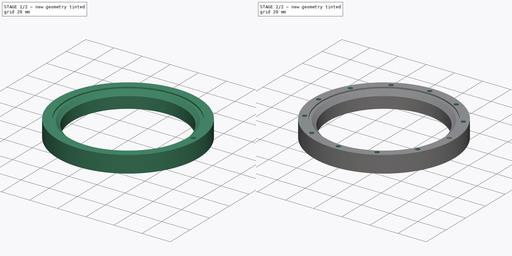
[diagram: build sequence overview — one tinted view per stage of 2, left to right]
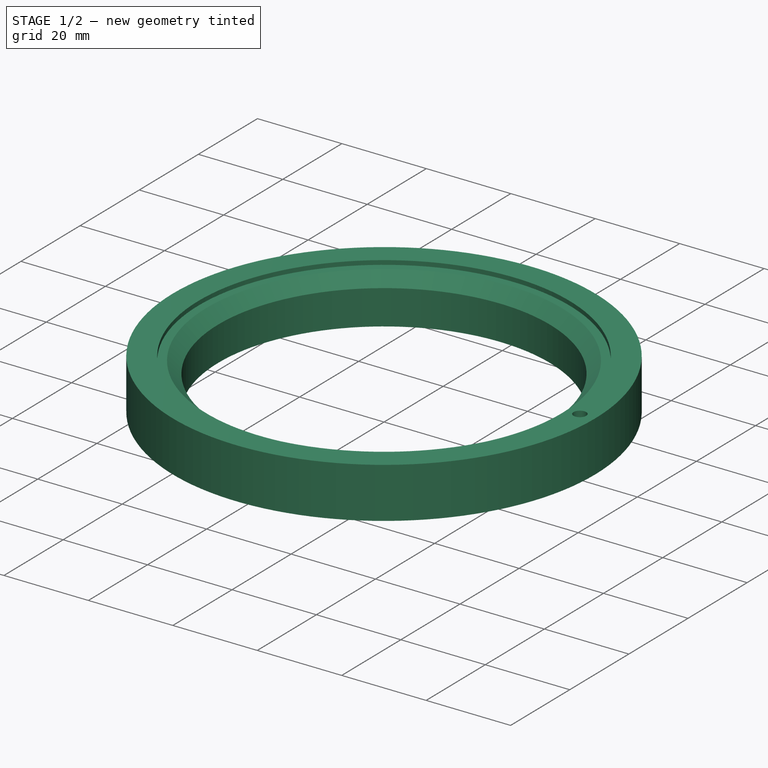
[diagram: stage 1 of 2 — iso view after this stage's code; geometry added in this stage tinted green]
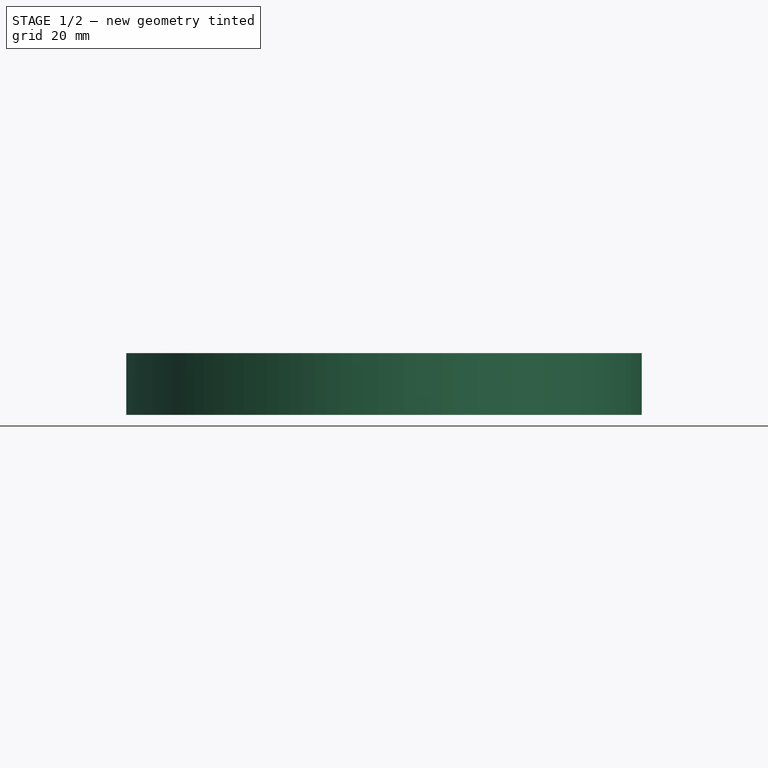
[diagram: stage 1 of 2 — front view after this stage's code; geometry added in this stage tinted green]
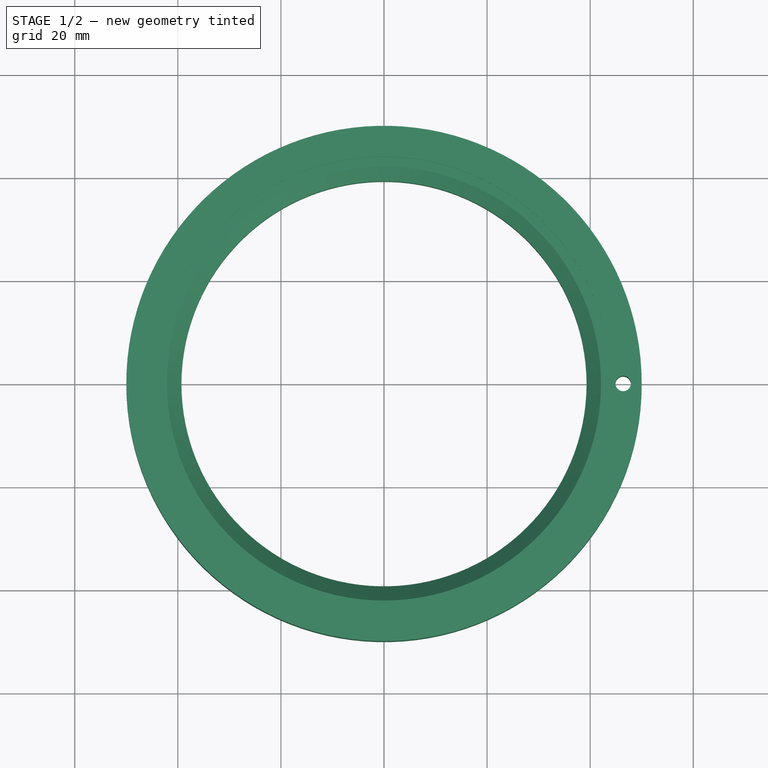
[diagram: stage 1 of 2 — top view after this stage's code; geometry added in this stage tinted green]
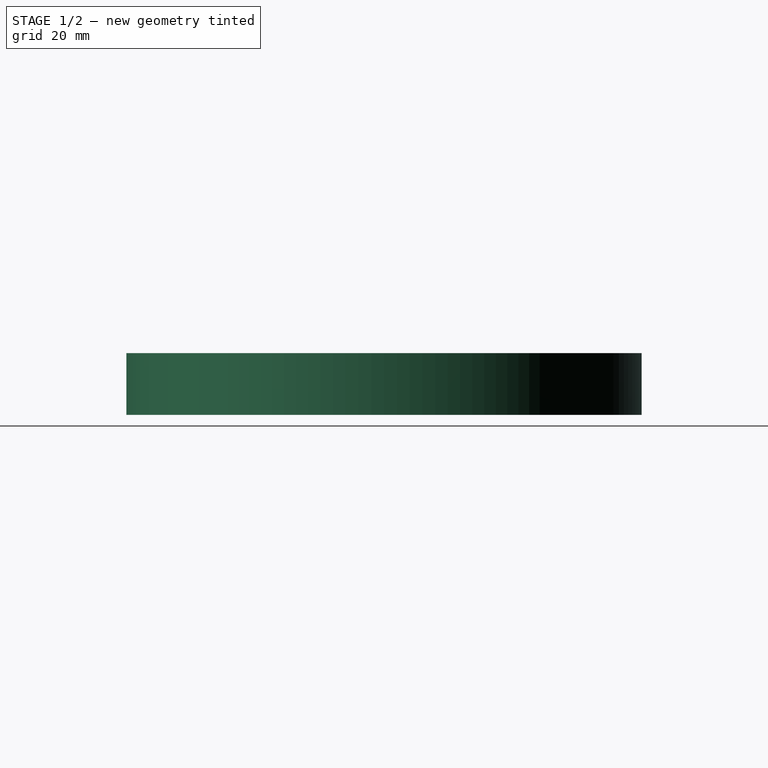
[diagram: stage 1 of 2 — right view after this stage's code; geometry added in this stage tinted green]
FCSTD DOCUMENT  (FreeCAD 0.16R6705 (Git))
Label: TestOuterRace
License: All rights reserved
LicenseURL: http://en.wikipedia.org/wiki/All_rights_reserved
objects: Sketcher::SketchObject×2, PartDesign::Revolution×1, PartDesign::Pocket×1, PartDesign::PolarPattern×1
note: 7 computed .brp shape members not serialized (recipe doc carries the construction recipe); baked Part::Feature solids carry a one-line shape summary decoded from their .brp

FEATURE [Sketcher::SketchObject] Sketch013
  Placement = pos=(0,0,0) rot=(1,0,0;1.5708rad)
  sketch-geometry (9):
    g0: LineSegment StartX=39.3 StartY=0 StartZ=0 EndX=39.3 EndY=8.19878 EndZ=0
    g1: LineSegment StartX=39.3 StartY=8.19878 StartZ=0 EndX=42.1012 EndY=11 EndZ=0
    g2: LineSegment StartX=44 StartY=12 StartZ=0 EndX=50 EndY=12 EndZ=0
    g3: LineSegment StartX=50 StartY=12 StartZ=0 EndX=50 EndY=0 EndZ=0
    g4: LineSegment StartX=42.1012 StartY=11 StartZ=0 EndX=44 EndY=11 EndZ=0
    g5: LineSegment StartX=44 StartY=11 StartZ=0 EndX=44 EndY=12 EndZ=0
    g6: Circle [constr] CenterX=39 CenterY=12 CenterZ=0 NormalX=0 NormalY=0 NormalZ=1 Radius=2.9
    g7: LineSegment [constr] StartX=39 StartY=12 StartZ=0 EndX=44 EndY=12 EndZ=0
    g8: LineSegment StartX=39.3 StartY=0 StartZ=0 EndX=50 EndY=0 EndZ=0
  constraints (29):
    c: Vertical(g0)
    c: Coincident(g0,g1)
    c: Horizontal(g2)
    c: Coincident(g3,g2)
    c: Vertical(g3)
    c: Coincident(g1,g4)
    c: Coincident(g4,g5)
    c: Coincident(g2,g5)
    c: Vertical(g5)
    c: Horizontal(g4)
    c: Radius(g6) = 2.9
    c: Tangent(g1,g6)
    c: Coincident(g7,g6)
    c: Horizontal(g7)
    c: Angle(g1,g7) = 2.35619
    c: DistanceX(g6,g0) = 0.3
    c: DistanceY(g1,g6) = 1
    c: Coincident(g2,g7)
    c: DistanceX(g-1,g4) = 44
    c: DistanceX(g-1,g6) = 39
    c: DistanceX(g2,g2) = 6
    c: DistanceX(g1,g4) = 1.89878
    c: Coincident(g8,g0)
    c: Horizontal(g8)
    c: Coincident(g8,g3)
    c: DistanceY(g3,g2) = 12
    c: DistanceY(g0,g0) = 8.19878
    c: DistanceX(g-1,g3) = 50
    c: PointOnObject(g0,g-1)
FEATURE [PartDesign::Revolution] Revolution
  Angle = 360
  Axis = (0,0,1)
  Base = (0,0,0)
  Placement = pos=(0,0,0) rot=(1,0,0;1.5708rad)
  ReferenceAxis = -> Sketch013 [V_Axis]
  Reversed = true
  Sketch = -> Sketch013
FEATURE [Sketcher::SketchObject] Sketch
  Placement = pos=(0,0,0) rot=(1,0,0;3.14159rad)
  Support = -> Revolution [Face7]
  sketch-geometry (1):
    g0: Circle CenterX=46.4 CenterY=0 CenterZ=0 NormalX=0 NormalY=0 NormalZ=1 Radius=1.5
  constraints (3):
    c: PointOnObject(g0,g-1)
    c: Radius(g0) = 1.5
    c: DistanceX(g-1,g0) = 46.4
FEATURE [PartDesign::Pocket] Pocket
  Length = 5
  Placement = pos=(0,0,0) rot=(1,0,0;1.5708rad)
  Sketch = -> Sketch
  Type = 1
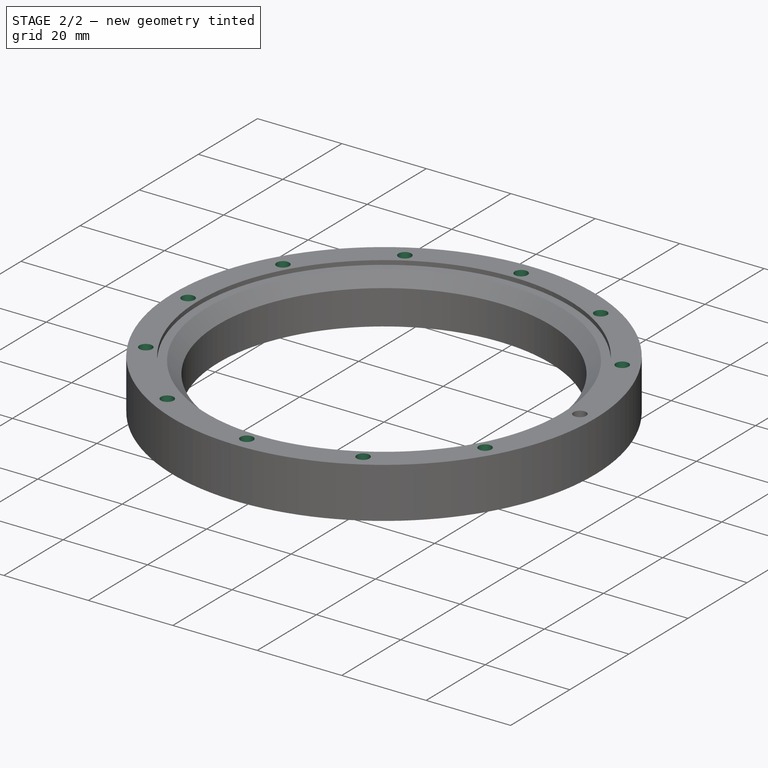
[diagram: stage 2 of 2 — iso view after this stage's code; geometry added in this stage tinted green]
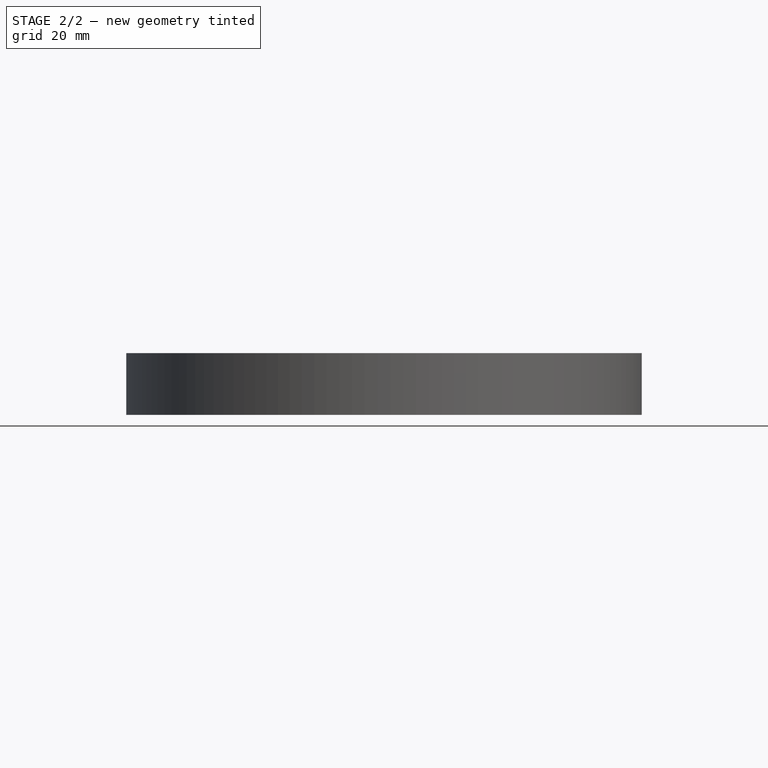
[diagram: stage 2 of 2 — front view after this stage's code; geometry added in this stage tinted green]
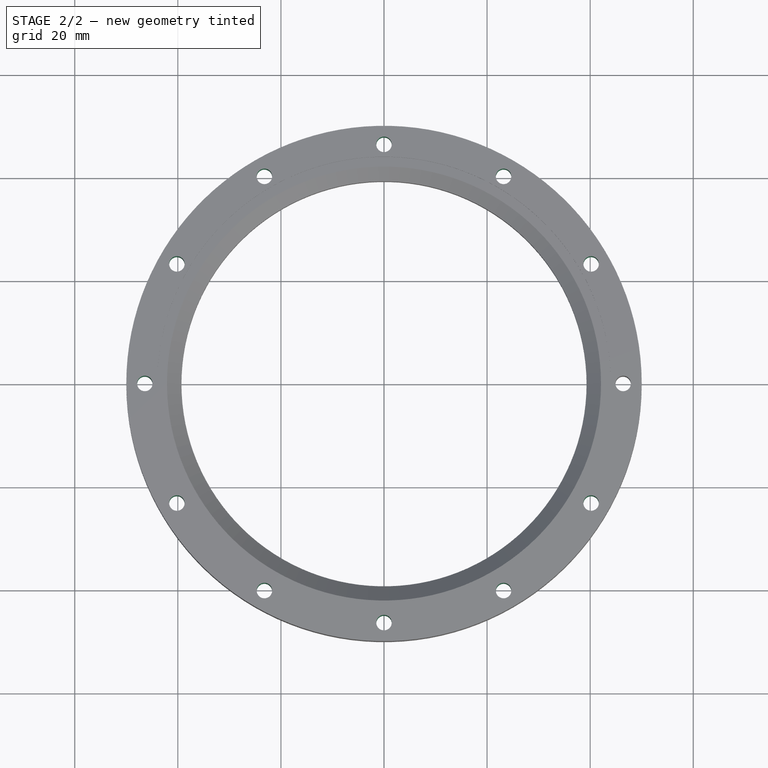
[diagram: stage 2 of 2 — top view after this stage's code; geometry added in this stage tinted green]
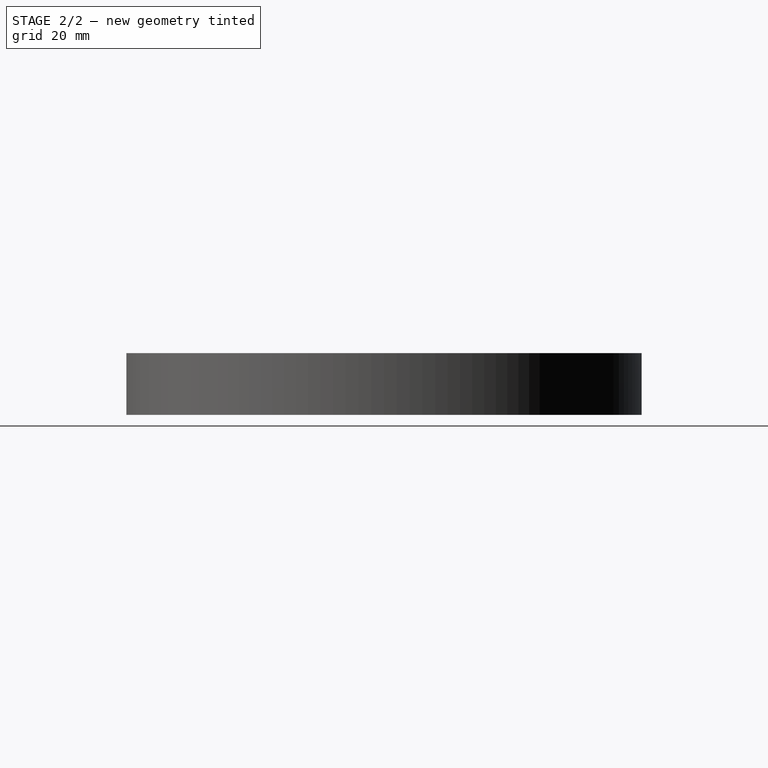
[diagram: stage 2 of 2 — right view after this stage's code; geometry added in this stage tinted green]
FEATURE [PartDesign::PolarPattern] PolarPattern
  Angle = 360
  Axis = -> Sketch [N_Axis]
  Occurrences = 12
  Originals = -> [Pocket]
  Placement = pos=(0,0,0) rot=(1,0,0;1.5708rad)
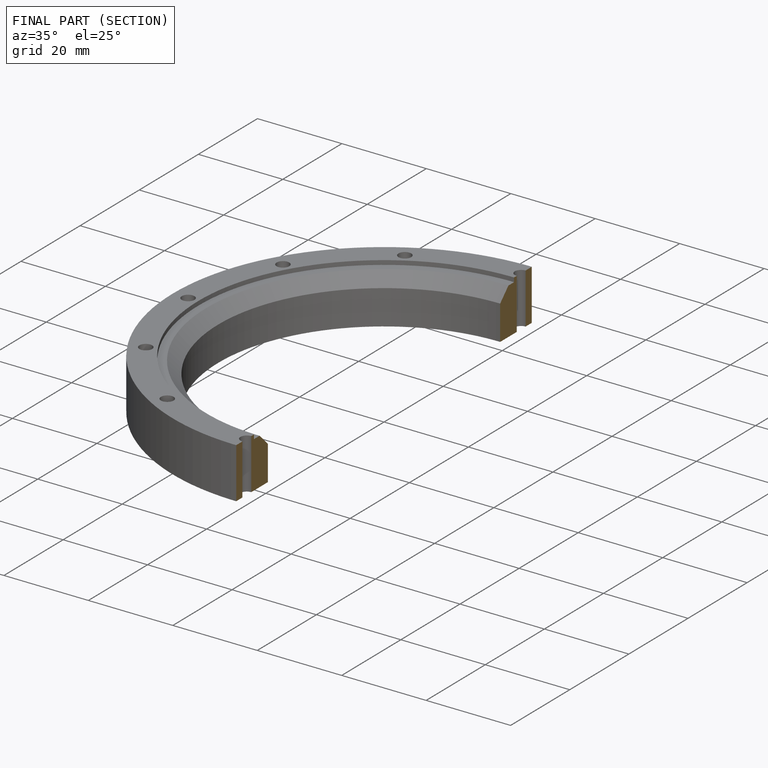
[diagram: finished part — half-section view (interior)]
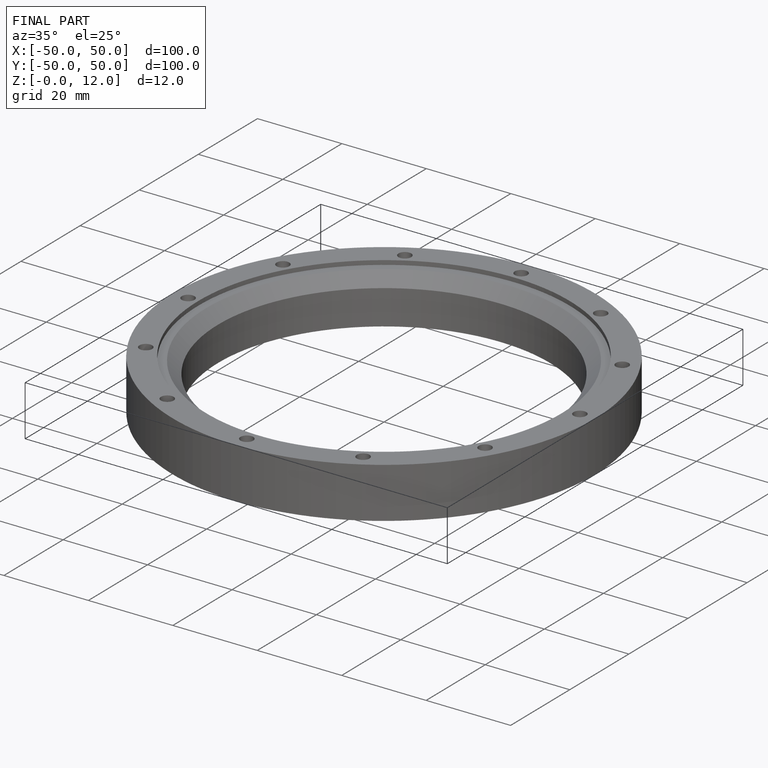
[diagram: finished part — iso view with bounding-box wireframe]
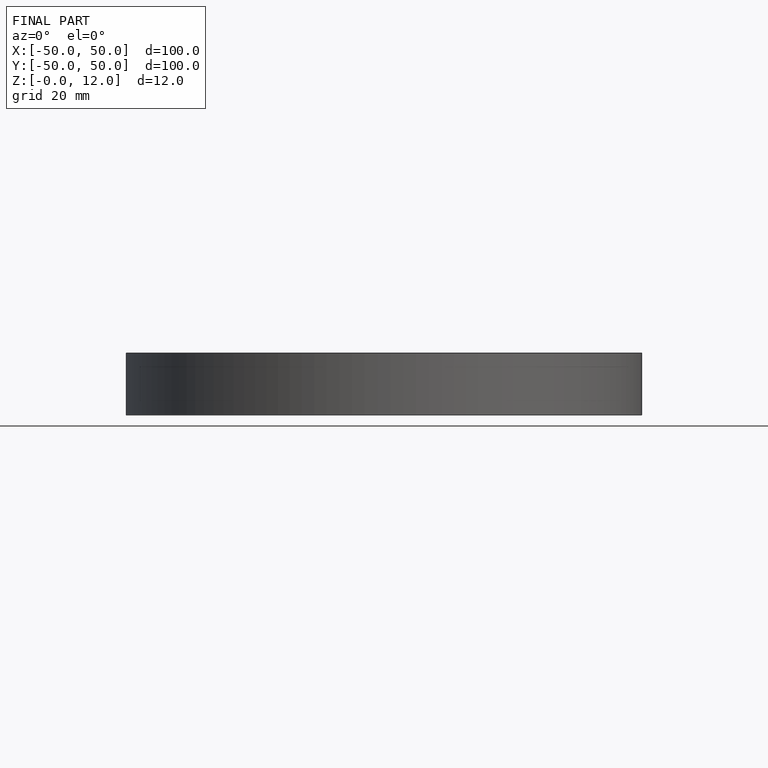
[diagram: finished part — front view with bounding-box wireframe]
